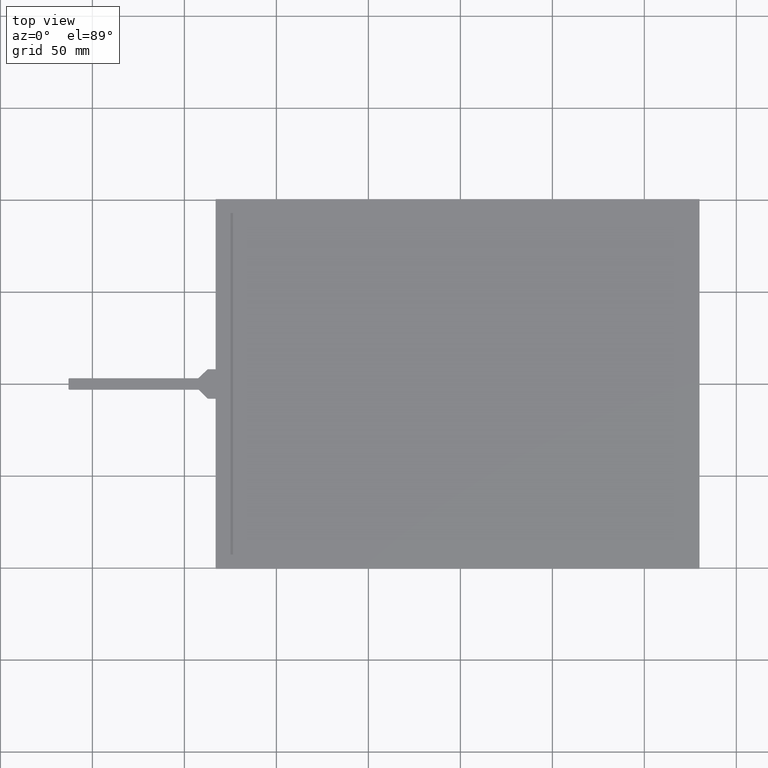
[diagram: clean part render]
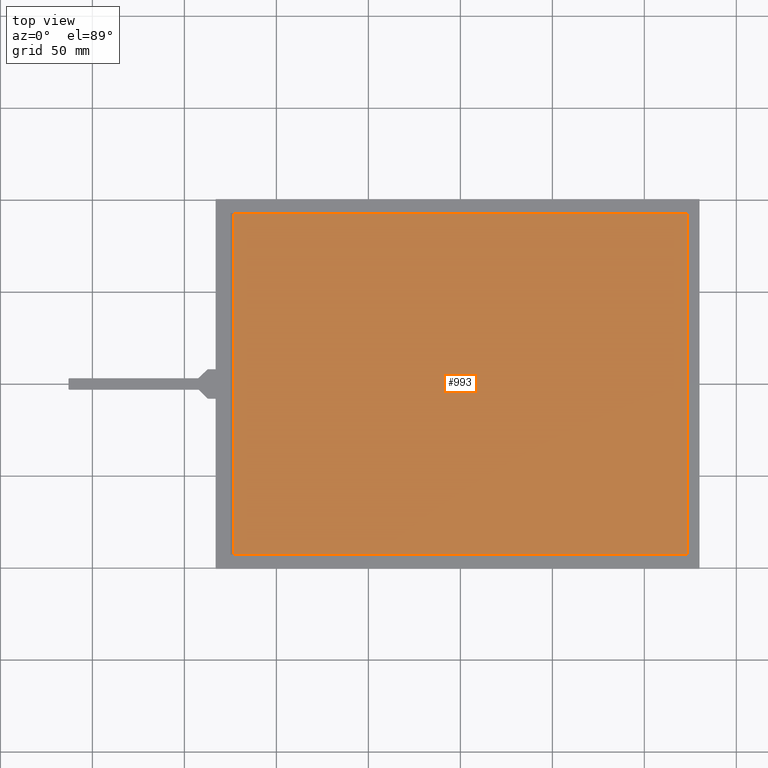
[diagram: same view with one face highlighted and labeled with its STEP entity id]
A machine part, top view. The second image highlights one B-rep face of the part: STEP entity #993.
In plain terms, the highlighted planar face has unit normal (0, 0, 1).
Its self-contained STEP definition (entity closure, byte-faithful):
#61=PLANE('',#1076);
#112=FACE_OUTER_BOUND('',#166,.T.);
#166=EDGE_LOOP('',(#930,#931,#932,#933));
#258=LINE('',#1541,#384);
#262=LINE('',#1549,#388);
#265=LINE('',#1555,#391);
#268=LINE('',#1560,#394);
#384=VECTOR('',#1266,10.);
#388=VECTOR('',#1272,10.);
#391=VECTOR('',#1277,10.);
#394=VECTOR('',#1282,10.);
#500=VERTEX_POINT('',#1539);
#501=VERTEX_POINT('',#1540);
#504=VERTEX_POINT('',#1548);
#506=VERTEX_POINT('',#1554);
#626=EDGE_CURVE('',#500,#501,#258,.T.);
#630=EDGE_CURVE('',#504,#500,#262,.T.);
#633=EDGE_CURVE('',#506,#504,#265,.T.);
#636=EDGE_CURVE('',#501,#506,#268,.T.);
#930=ORIENTED_EDGE('',*,*,#626,.T.);
#931=ORIENTED_EDGE('',*,*,#636,.T.);
#932=ORIENTED_EDGE('',*,*,#633,.T.);
#933=ORIENTED_EDGE('',*,*,#630,.T.);
#993=ADVANCED_FACE('',(#112),#61,.T.);
#1076=AXIS2_PLACEMENT_3D('',#1612,#1328,#1329);
#1266=DIRECTION('',(1.,0.,0.));
#1272=DIRECTION('',(0.,-1.,0.));
#1277=DIRECTION('',(-1.,0.,0.));
#1282=DIRECTION('',(0.,1.,0.));
#1328=DIRECTION('center_axis',(0.,0.,1.));
#1329=DIRECTION('ref_axis',(1.,0.,0.));
#1539=CARTESIAN_POINT('',(-123.5,-92.75,0.));
#1540=CARTESIAN_POINT('',(123.5,-92.75,0.));
#1541=CARTESIAN_POINT('',(-62.5,-92.75,0.));
#1548=CARTESIAN_POINT('',(-123.5,92.75,0.));
#1549=CARTESIAN_POINT('',(-123.5,46.375,0.));
#1554=CARTESIAN_POINT('',(123.5,92.75,0.));
#1555=CARTESIAN_POINT('',(61.,92.75,0.));
#1560=CARTESIAN_POINT('',(123.5,-46.375,0.));
#1612=CARTESIAN_POINT('Origin',(-1.50000000000002,1.77635683940025E-14,
0.));